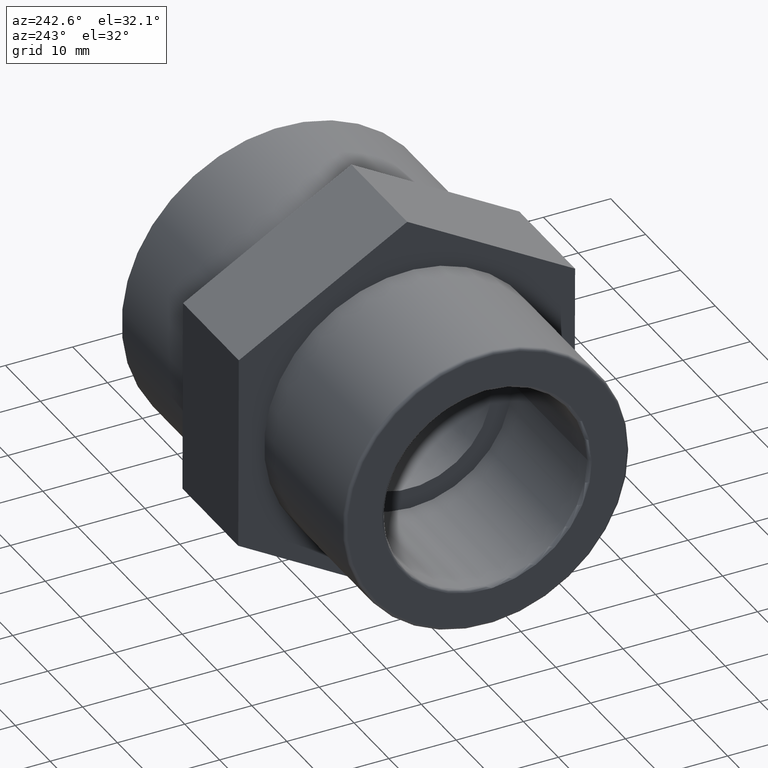
[diagram: clean part render]
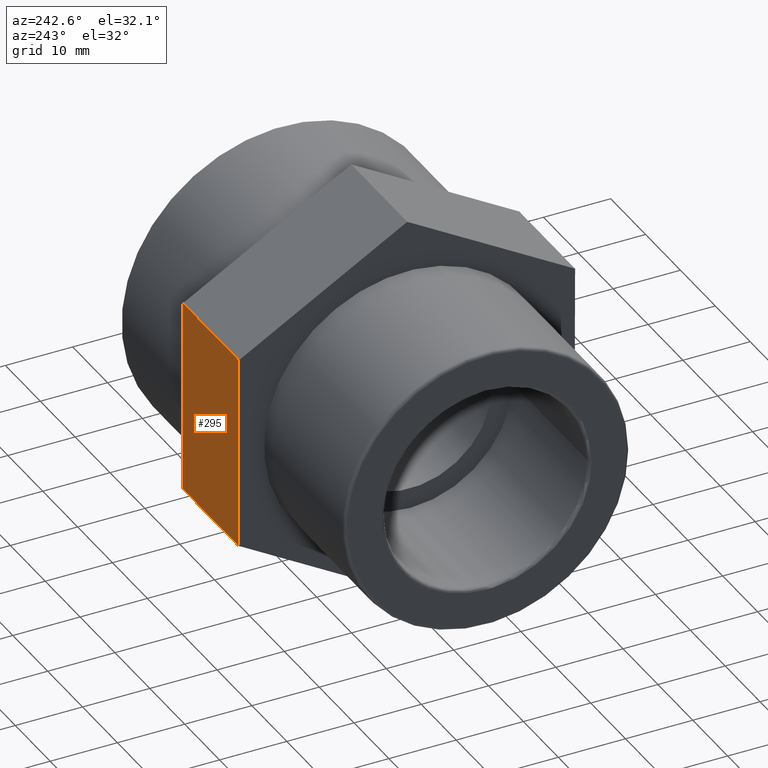
[diagram: same view with one face highlighted and labeled with its STEP entity id]
A machine part, auxiliary view. The second image highlights one B-rep face of the part: STEP entity #295.
In plain terms, the highlighted planar face has unit normal (-0, 1, 0.003).
Its self-contained STEP definition (entity closure, byte-faithful):
#23=LINE('',#482,#41);
#28=LINE('',#492,#46);
#31=LINE('',#497,#49);
#32=LINE('',#498,#50);
#41=VECTOR('',#398,16.);
#46=VECTOR('',#405,16.);
#49=VECTOR('',#412,28.8675134594813);
#50=VECTOR('',#413,28.8675134594813);
#63=PLANE('',#330);
#98=FACE_OUTER_BOUND('',#129,.T.);
#129=EDGE_LOOP('',(#252,#253,#254,#255));
#172=VERTEX_POINT('',#479);
#173=VERTEX_POINT('',#481);
#174=VERTEX_POINT('',#485);
#177=VERTEX_POINT('',#490);
#200=EDGE_CURVE('',#173,#172,#23,.T.);
#205=EDGE_CURVE('',#177,#174,#28,.T.);
#208=EDGE_CURVE('',#172,#174,#31,.T.);
#209=EDGE_CURVE('',#177,#173,#32,.T.);
#252=ORIENTED_EDGE('',*,*,#208,.T.);
#253=ORIENTED_EDGE('',*,*,#205,.F.);
#254=ORIENTED_EDGE('',*,*,#209,.T.);
#255=ORIENTED_EDGE('',*,*,#200,.T.);
#295=ADVANCED_FACE('',(#98),#63,.T.);
#330=AXIS2_PLACEMENT_3D('',#496,#410,#411);
#398=DIRECTION('',(-1.,-1.85037170770859E-16,0.));
#405=DIRECTION('',(-1.,-1.85037170770859E-16,0.));
#410=DIRECTION('center_axis',(-1.85036358388747E-16,0.999995609627469,0.00296322894591905));
#411=DIRECTION('ref_axis',(0.,0.00296322894591903,-0.999995609627469));
#412=DIRECTION('',(5.44336326564082E-19,-0.00296322894591905,0.999995609627469));
#413=DIRECTION('',(-5.44336326564082E-19,0.00296322894591905,-0.999995609627469));
#479=CARTESIAN_POINT('',(-6.5,25.0426607664267,-14.3596126365236));
#481=CARTESIAN_POINT('',(9.5,25.0426607664267,-14.3596126365236));
#482=CARTESIAN_POINT('',(9.5,25.0426607664267,-14.3596126365236));
#485=CARTESIAN_POINT('',(-6.5,24.9571197149468,14.5077740838195));
#490=CARTESIAN_POINT('',(9.5,24.9571197149468,14.5077740838195));
#492=CARTESIAN_POINT('',(9.5,24.9571197149468,14.5077740838195));
#496=CARTESIAN_POINT('Origin',(9.5,24.9998902406868,0.0740807236479801));
#497=CARTESIAN_POINT('',(-6.5,24.9998902406868,0.0740807236479748));
#498=CARTESIAN_POINT('',(9.5,24.9571197149468,14.5077740838195));